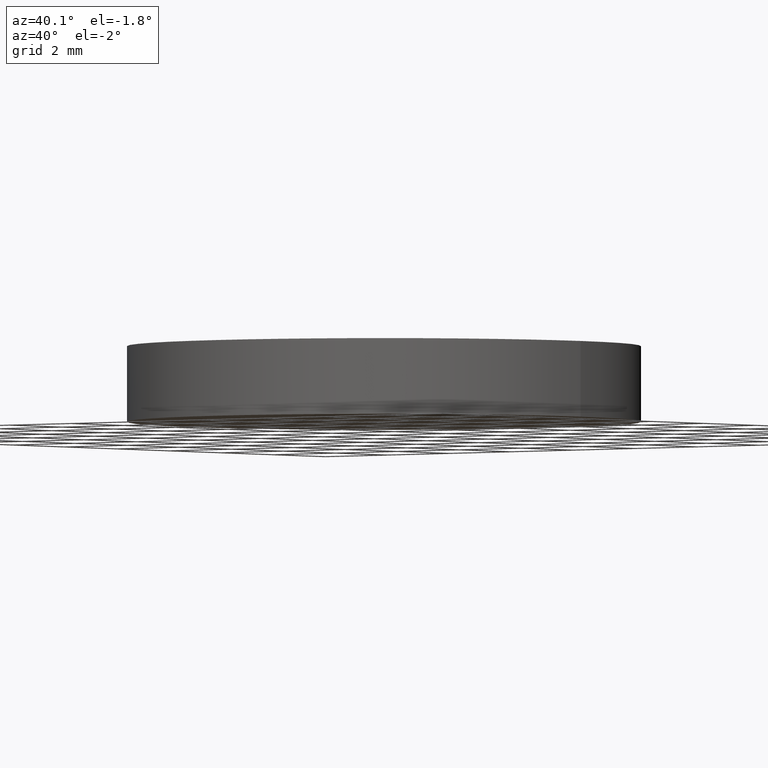
[diagram: clean part render]
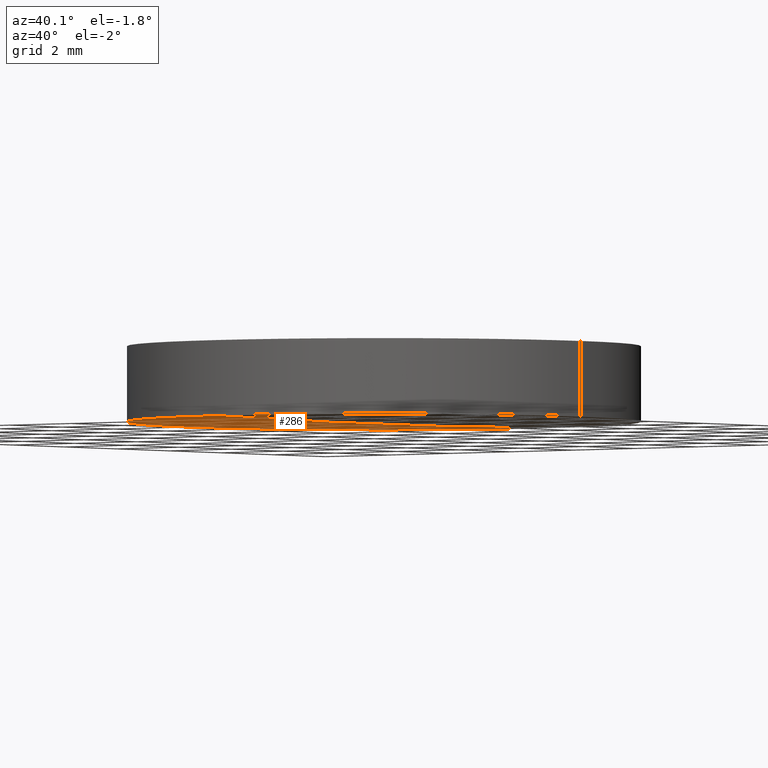
[diagram: same view with one face highlighted and labeled with its STEP entity id]
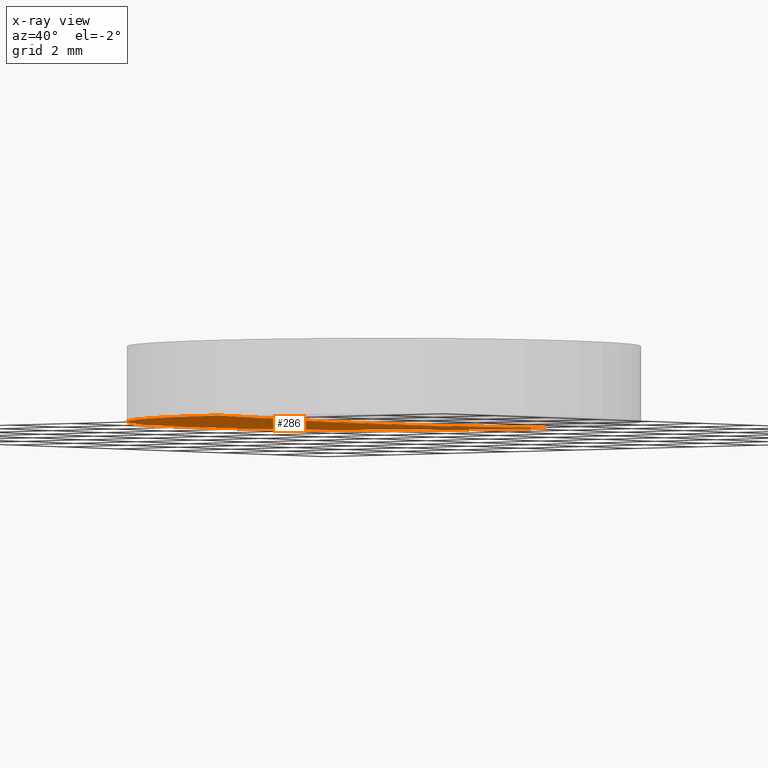
[diagram: x-ray of the same camera — body ghosted, the highlighted face saturated]
A machine part, auxiliary view. The second image highlights one B-rep face of the part: STEP entity #286.
The next image is the same camera in x-ray: the body ghosted, the highlighted face saturated — about 0% of this face is hidden behind the body in this view.
In plain terms, the highlighted face is a freeform B-spline surface patch.
Its self-contained STEP definition (entity closure, byte-faithful):
#9 = DIRECTION ( 'NONE',  ( -0.0000000000000000000, -0.0000000000000000000, -1.000000000000000000 ) ) ;
#11 = AXIS2_PLACEMENT_3D ( 'NONE', #200, #34, #131 ) ;
#26 = ORIENTED_EDGE ( 'NONE', *, *, #68, .T. ) ;
#34 = DIRECTION ( 'NONE',  ( 1.000000000000000000, -3.738639560994800200E-016, -3.230945461933270100E-016 ) ) ;
#36 = CARTESIAN_POINT ( 'NONE',  ( -4.259295361755652800, -2.142368200197970900, -0.0002625701191974419600 ) ) ;
#39 = CARTESIAN_POINT ( 'NONE',  ( -6.388549635048286200, 2.142368200197876800, 0.04349667720284827000 ) ) ;
#40 = DIRECTION ( 'NONE',  ( 1.000000000000000000, 0.0000000000000000000, 0.0000000000000000000 ) ) ;
#41 = CARTESIAN_POINT ( 'NONE',  ( -2.129703883656574700, -2.142368200197971400, -0.02214334864553151400 ) ) ;
#47 = ORIENTED_EDGE ( 'NONE', *, *, #216, .T. ) ;
#56 = DIRECTION ( 'NONE',  ( 1.000000000000000000, 8.881784197001252300E-016, 0.0000000000000000000 ) ) ;
#61 = CARTESIAN_POINT ( 'NONE',  ( -9.805510406251405700E-014, 6.350000000000327400, 0.06485478633533377200 ) ) ;
#63 = CARTESIAN_POINT ( 'NONE',  ( -1.760744328116458900E-013, 2.142368200197874600, -0.02214334864553297100 ) ) ;
#68 = EDGE_CURVE ( 'NONE', #257, #101, #226, .T. ) ;
#74 = AXIS2_PLACEMENT_3D ( 'NONE', #291, #9, #56 ) ;
#87 = CARTESIAN_POINT ( 'NONE',  ( -4.258082132148490300, -6.426189210769719800, 0.08829513048362869200 ) ) ;
#88 = FACE_OUTER_BOUND ( 'NONE', #263, .T. ) ;
#101 = VERTEX_POINT ( 'NONE', #61 ) ;
#112 = CARTESIAN_POINT ( 'NONE',  ( -1.778091562876227300E-013, -2.142368200197971800, -0.02214334864553272800 ) ) ;
#114 = CARTESIAN_POINT ( 'NONE',  ( -6.349999999999999600, 1.998896044546239400E-015, 0.06485478633533430000 ) ) ;
#129 = CIRCLE ( 'NONE', #272, 6.349999999999999600 ) ;
#131 = DIRECTION ( 'NONE',  ( -3.738639560994798700E-016, -1.000000000000000000, 3.570997184384549400E-016 ) ) ;
#137 = CARTESIAN_POINT ( 'NONE',  ( -2.129703883656572900, 2.142368200197875900, -0.02214334864553175700 ) ) ;
#158 = EDGE_CURVE ( 'NONE', #189, #101, #193, .T. ) ;
#160 = CARTESIAN_POINT ( 'NONE',  ( -2.129097252844037100, -6.426189210769720700, 0.06642058453946635100 ) ) ;
#167 =( BOUNDED_SURFACE ( )  B_SPLINE_SURFACE ( 3, 3, ( 
 ( #277, #87, #160, #259 ),
 ( #183, #36, #41, #112 ),
 ( #39, #235, #137, #63 ),
 ( #208, #182, #187, #258 ) ),
 .UNSPECIFIED., .F., .F., .F. ) 
 B_SPLINE_SURFACE_WITH_KNOTS ( ( 4, 4 ),
 ( 4, 4 ),
 ( 0.0000000000000000000, 1.000000000000000000 ),
 ( 0.0000000000000000000, 1.000000000000000000 ),
 .UNSPECIFIED. ) 
 GEOMETRIC_REPRESENTATION_ITEM ( )  RATIONAL_B_SPLINE_SURFACE ( (
 ( 1.000000000000000000, 0.9999648134002164800, 0.9999648134002164800, 1.000000000000000000),
 ( 0.9998575735294530400, 0.9998223919411727300, 0.9998223919411727300, 0.9998575735294530400),
 ( 0.9998575735294530400, 0.9998223919411727300, 0.9998223919411727300, 0.9998575735294530400),
 ( 1.000000000000000000, 0.9999648134002164800, 0.9999648134002164800, 1.000000000000000000) ) ) 
 REPRESENTATION_ITEM ( '' )  SURFACE ( )  );
#181 = ORIENTED_EDGE ( 'NONE', *, *, #158, .F. ) ;
#182 = CARTESIAN_POINT ( 'NONE',  ( -4.258082132148485900, 6.426189210769624800, 0.08829513048362869200 ) ) ;
#183 = CARTESIAN_POINT ( 'NONE',  ( -6.388549635048288000, -2.142368200197969600, 0.04349667720284848500 ) ) ;
#186 = CARTESIAN_POINT ( 'NONE',  ( 2.498001805406600200E-016, 1.221245327087670000E-015, 0.06485478633533430000 ) ) ;
#187 = CARTESIAN_POINT ( 'NONE',  ( -2.129097252844031700, 6.426189210769623900, 0.06642058453946633700 ) ) ;
#189 = VERTEX_POINT ( 'NONE', #275 ) ;
#193 = CIRCLE ( 'NONE', #11, 310.9000000000000300 ) ;
#200 = CARTESIAN_POINT ( 'NONE',  ( 0.0000000000000000000, -5.684341886080800200E-014, 310.9000000000000300 ) ) ;
#208 = CARTESIAN_POINT ( 'NONE',  ( -6.386729902696855800, 6.426189210769626600, 0.1320419132992412000 ) ) ;
#216 = EDGE_CURVE ( 'NONE', #189, #257, #129, .T. ) ;
#226 = CIRCLE ( 'NONE', #74, 6.349999999999999600 ) ;
#235 = CARTESIAN_POINT ( 'NONE',  ( -4.259295361755651000, 2.142368200197876300, -0.0002625701191976589100 ) ) ;
#257 = VERTEX_POINT ( 'NONE', #114 ) ;
#258 = CARTESIAN_POINT ( 'NONE',  ( -1.743397093356691100E-013, 6.426189210769623900, 0.06642058453946513000 ) ) ;
#259 = CARTESIAN_POINT ( 'NONE',  ( -1.795438797635995300E-013, -6.426189210769721600, 0.06642058453946513000 ) ) ;
#263 = EDGE_LOOP ( 'NONE', ( #181, #47, #26 ) ) ;
#272 = AXIS2_PLACEMENT_3D ( 'NONE', #186, #295, #40 ) ;
#275 = CARTESIAN_POINT ( 'NONE',  ( -1.028031763049777000E-013, -6.350000000000383300, 0.06485478633533377200 ) ) ;
#277 = CARTESIAN_POINT ( 'NONE',  ( -6.386729902696860300, -6.426189210769718900, 0.1320419132992412000 ) ) ;
#286 = ADVANCED_FACE ( 'NONE', ( #88 ), #167, .T. ) ;
#291 = CARTESIAN_POINT ( 'NONE',  ( 2.498001805406600200E-016, 1.221245327087670000E-015, 0.06485478633533430000 ) ) ;
#295 = DIRECTION ( 'NONE',  ( -0.0000000000000000000, -0.0000000000000000000, -1.000000000000000000 ) ) ;